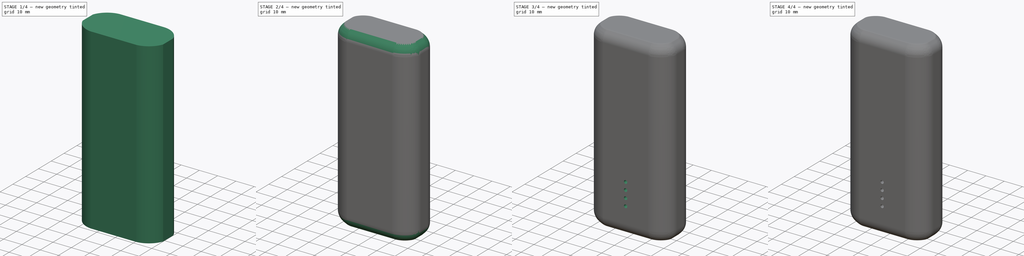
[diagram: build sequence overview — one tinted view per stage of 4, left to right]
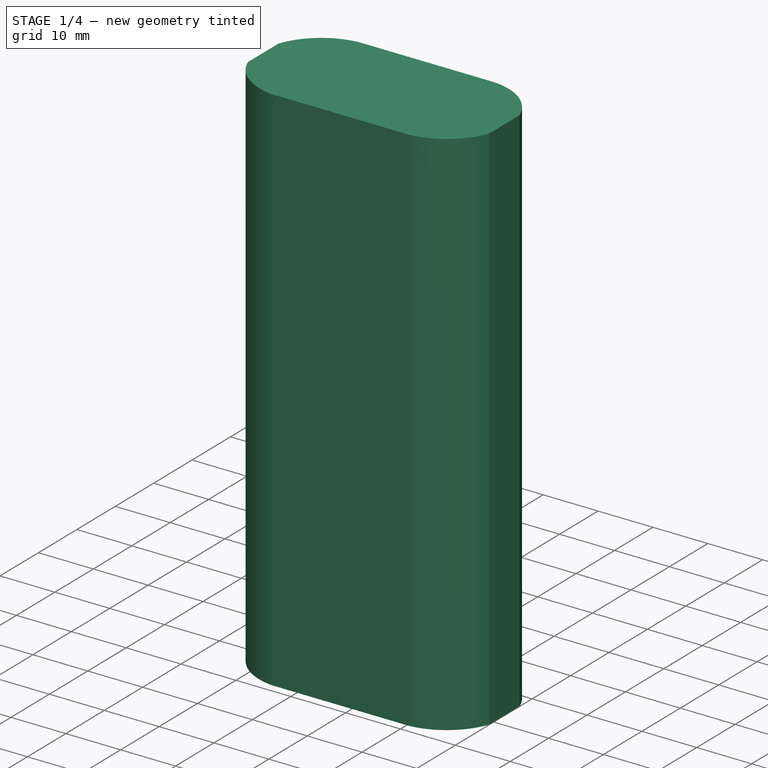
[diagram: stage 1 of 4 — iso view after this stage's code; geometry added in this stage tinted green]
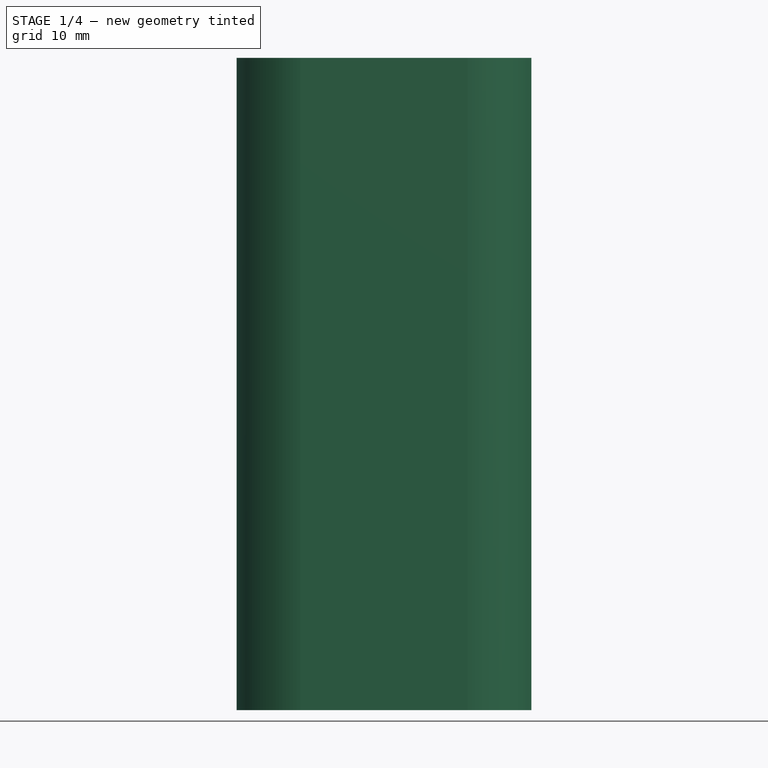
[diagram: stage 1 of 4 — front view after this stage's code; geometry added in this stage tinted green]
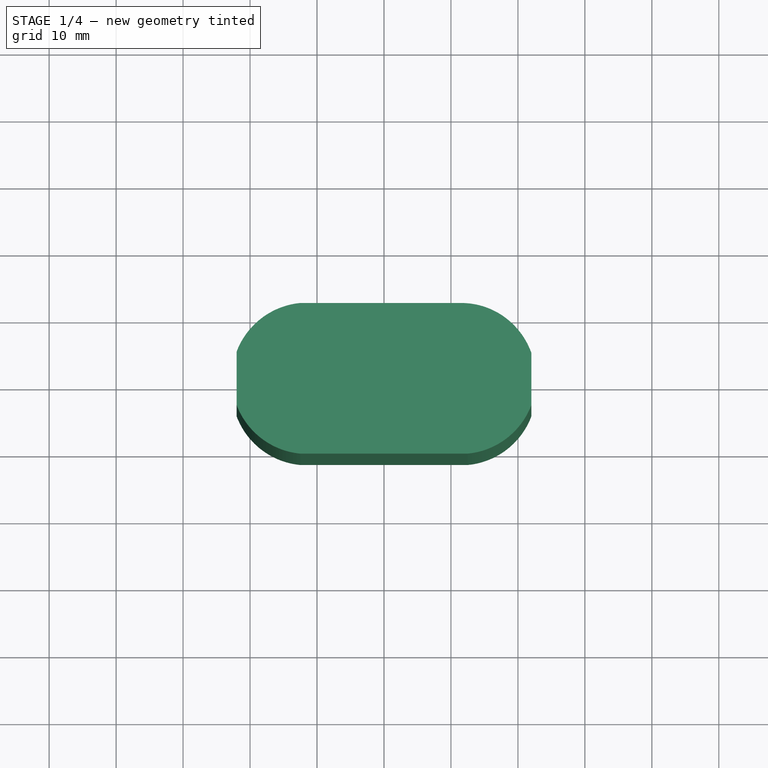
[diagram: stage 1 of 4 — top view after this stage's code; geometry added in this stage tinted green]
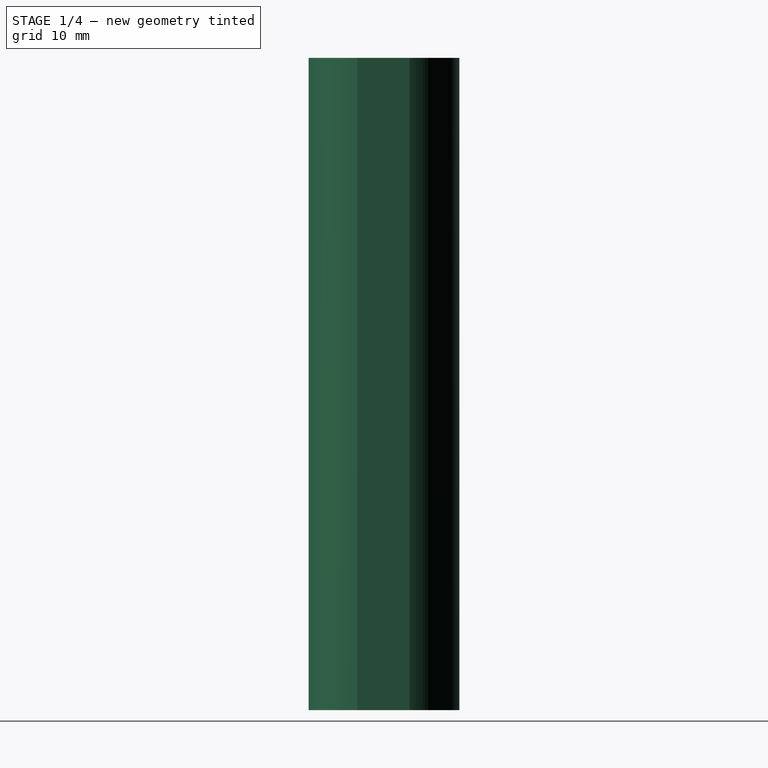
[diagram: stage 1 of 4 — right view after this stage's code; geometry added in this stage tinted green]
FCSTD DOCUMENT  (FreeCAD 0.18R14016 (Git))
Label: anker
License: CreativeCommons Attribution-NonCommercial-ShareAlike
LicenseURL: http://creativecommons.org/licenses/by-nc-sa/4.0/
objects: PartDesign::Fillet×5, Sketcher::SketchObject×4, PartDesign::Pad×2, PartDesign::Pocket×2, PartDesign::Chamfer×1, PartDesign::Body×1
note: 19 computed .brp shape members not serialized (recipe doc carries the construction recipe); baked Part::Feature solids carry a one-line shape summary decoded from their .brp

FEATURE [Sketcher::SketchObject] Sketch001
  MapMode = 5
  Placement = pos=(0,0,1) rot=(1,0,0;3.14159rad)
  sketch-geometry (16):
    g0: LineSegment [constr] StartX=22 StartY=-11.25 StartZ=0 EndX=-22 EndY=-11.25 EndZ=0
    g1: LineSegment [constr] StartX=-22 StartY=-11.25 StartZ=0 EndX=-22 EndY=11.25 EndZ=0
    g2: LineSegment [constr] StartX=-22 StartY=11.25 StartZ=0 EndX=22 EndY=11.25 EndZ=0
    g3: LineSegment [constr] StartX=22 StartY=11.25 StartZ=0 EndX=22 EndY=-11.25 EndZ=0
    g4: LineSegment [constr] StartX=28.0315 StartY=-4 StartZ=0 EndX=-32.5281 EndY=-4 EndZ=0
    g5: LineSegment [constr] StartX=-31.9917 StartY=4 StartZ=0 EndX=28.1507 EndY=4 EndZ=0
    g6: LineSegment [constr] StartX=12.5 StartY=-17.9811 StartZ=0 EndX=12.5 EndY=19.0141 EndZ=0
    g7: LineSegment [constr] StartX=-12.5 StartY=-17.584 StartZ=0 EndX=-12.5 EndY=18.8949 EndZ=0
    g8: ArcOfCircle CenterX=-11.4309 CenterY=0 CenterZ=0 NormalX=0 NormalY=0 NormalZ=1 AngleXU=0 Radius=11.3007 StartAngle=3.5034 EndAngle=4.61764
    g9: ArcOfCircle CenterX=-11.4309 CenterY=0 CenterZ=0 NormalX=0 NormalY=0 NormalZ=1 AngleXU=0 Radius=11.3007 StartAngle=1.66554 EndAngle=2.77979
    g10: ArcOfCircle CenterX=11.3569 CenterY=0 CenterZ=0 NormalX=0 NormalY=0 NormalZ=1 AngleXU=0 Radius=11.3079 StartAngle=4.81365 EndAngle=5.93933
    g11: ArcOfCircle CenterX=11.4342 CenterY=0 CenterZ=0 NormalX=0 NormalY=0 NormalZ=1 AngleXU=0 Radius=11.3004 StartAngle=0.361813 EndAngle=1.47634
    g12: LineSegment StartX=12.5 StartY=-11.25 StartZ=0 EndX=-12.5 EndY=-11.25 EndZ=0
    g13: LineSegment StartX=-12.5 StartY=11.25 StartZ=0 EndX=12.5 EndY=11.25 EndZ=0
    g14: LineSegment StartX=-22 StartY=4 StartZ=0 EndX=-22 EndY=-4 EndZ=0
    g15: LineSegment StartX=22.0029 StartY=-3.81212 StartZ=0 EndX=22.0029 EndY=4 EndZ=0
  constraints (37):
    c: Coincident(g0,g1)
    c: Coincident(g1,g2)
    c: Coincident(g2,g3)
    c: Coincident(g3,g0)
    c: Horizontal(g0)
    c: Horizontal(g2)
    c: Vertical(g1)
    c: Vertical(g3)
    c: DistanceY(g3,g3) = 22.5
    c: DistanceY(g0,g-1) = 11.25
    c: DistanceX(g0,g0) = 44
    c: DistanceX(g-1,g0) = 22
    c: Horizontal(g4)
    c: Horizontal(g5)
    c: DistanceY(g-1,g5) = 4
    c: DistanceY(g4,g-1) = 4
    c: Vertical(g6)
    c: Vertical(g7)
    c: DistanceX(g7,g-1) = 12.5
    c: DistanceX(g-1,g6) = 12.5
    c: PointOnObject(g8,g0)
    c: PointOnObject(g8,g1)
    c: PointOnObject(g8,g-1)
    c: PointOnObject(g8,g4)
    c: PointOnObject(g8,g7)
    c: Coincident(g12,g10)
    c: Coincident(g12,g8)
    c: Horizontal(g12)
    c: Coincident(g13,g9)
    c: Coincident(g13,g11)
    c: Horizontal(g13)
    c: Coincident(g14,g9)
    c: Coincident(g14,g8)
    c: Vertical(g14)
    c: Coincident(g15,g10)
    c: Coincident(g15,g11)
    c: Vertical(g15)
FEATURE [PartDesign::Pad] Pad
  Length = 97.4
  Length2 = 100
  Placement = pos=(0,0,1) rot=(1,0,0;3.14159rad)
  Profile = -> Sketch001
  Type = 0
FEATURE [PartDesign::Fillet] Fillet
  Base = -> Pad [Edge11,Edge8,Edge1,Edge20]
  BaseFeature = -> Pad
  Placement = pos=(0,0,1) rot=(1,0,0;3.14159rad)
  Radius = 11
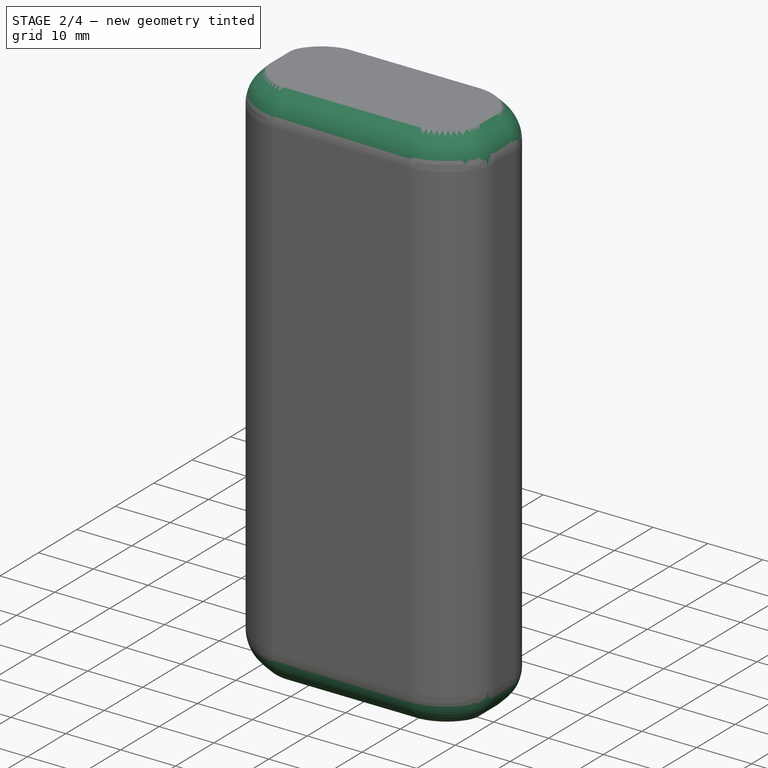
[diagram: stage 2 of 4 — iso view after this stage's code; geometry added in this stage tinted green]
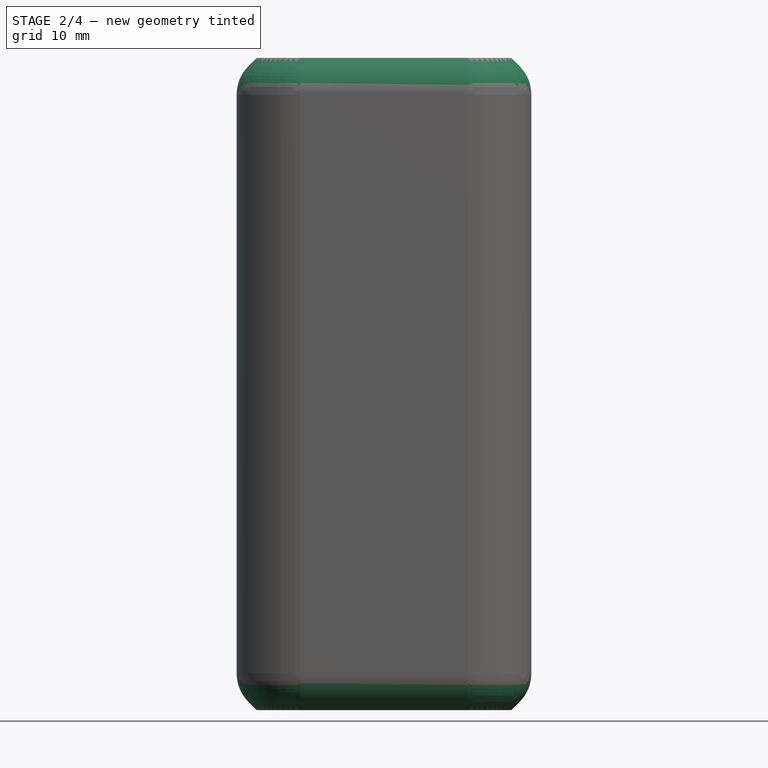
[diagram: stage 2 of 4 — front view after this stage's code; geometry added in this stage tinted green]
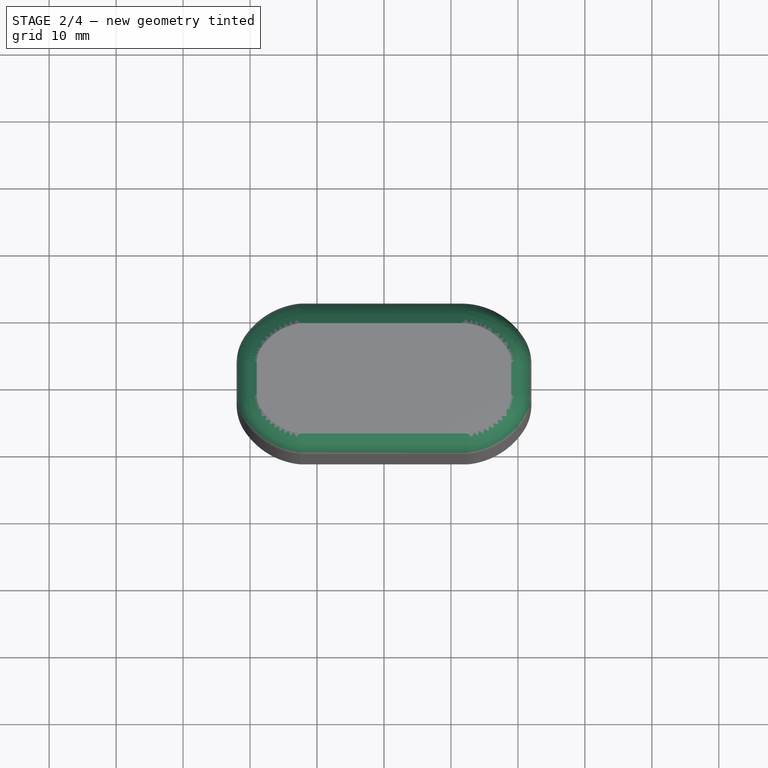
[diagram: stage 2 of 4 — top view after this stage's code; geometry added in this stage tinted green]
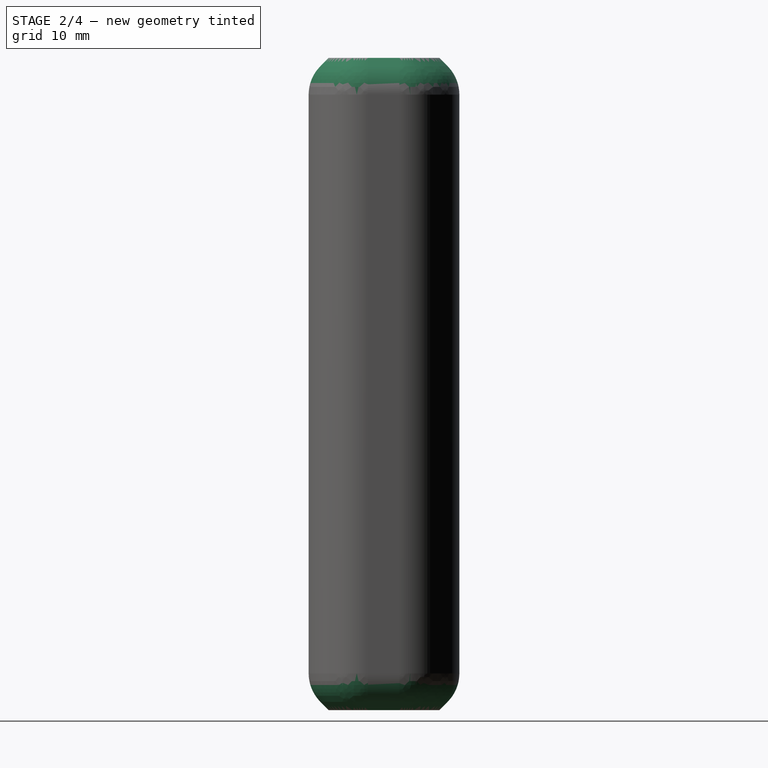
[diagram: stage 2 of 4 — right view after this stage's code; geometry added in this stage tinted green]
FEATURE [PartDesign::Fillet] Fillet001
  Base = -> Fillet [Edge23,Edge25,Edge15,Edge24]
  BaseFeature = -> Fillet
  Placement = pos=(0,0,1) rot=(1,0,0;3.14159rad)
  Radius = 7
FEATURE [PartDesign::Chamfer] Chamfer
  Base = -> Fillet001 [Edge34,Edge10]
  BaseFeature = -> Fillet001
  Placement = pos=(0,0,1) rot=(1,0,0;3.14159rad)
  Size = 3
FEATURE [PartDesign::Fillet] Fillet002
  Base = -> Chamfer [Edge41,Face15]
  BaseFeature = -> Chamfer
  Placement = pos=(0,0,1) rot=(1,0,0;3.14159rad)
  Radius = 6
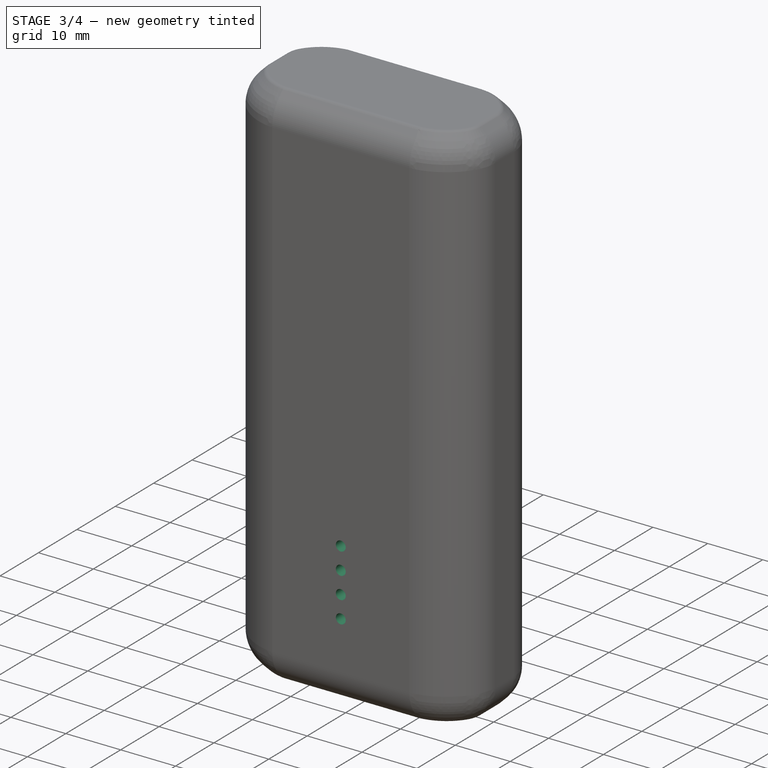
[diagram: stage 3 of 4 — iso view after this stage's code; geometry added in this stage tinted green]
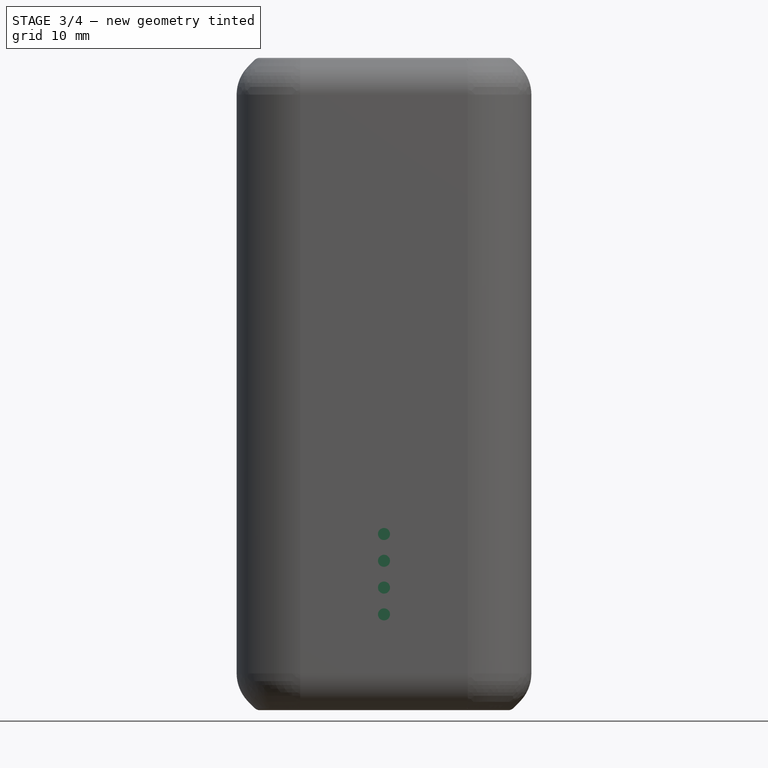
[diagram: stage 3 of 4 — front view after this stage's code; geometry added in this stage tinted green]
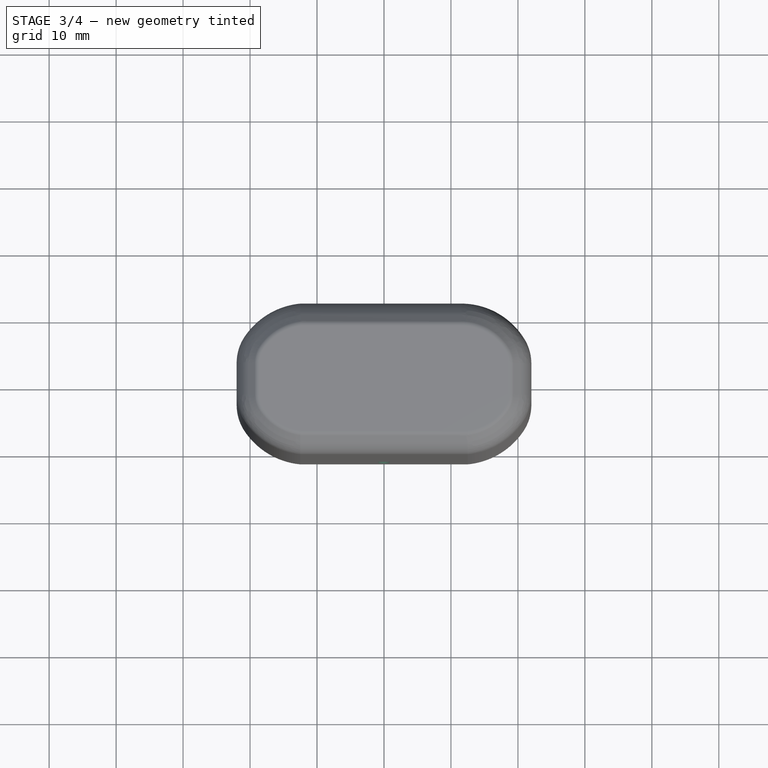
[diagram: stage 3 of 4 — top view after this stage's code; geometry added in this stage tinted green]
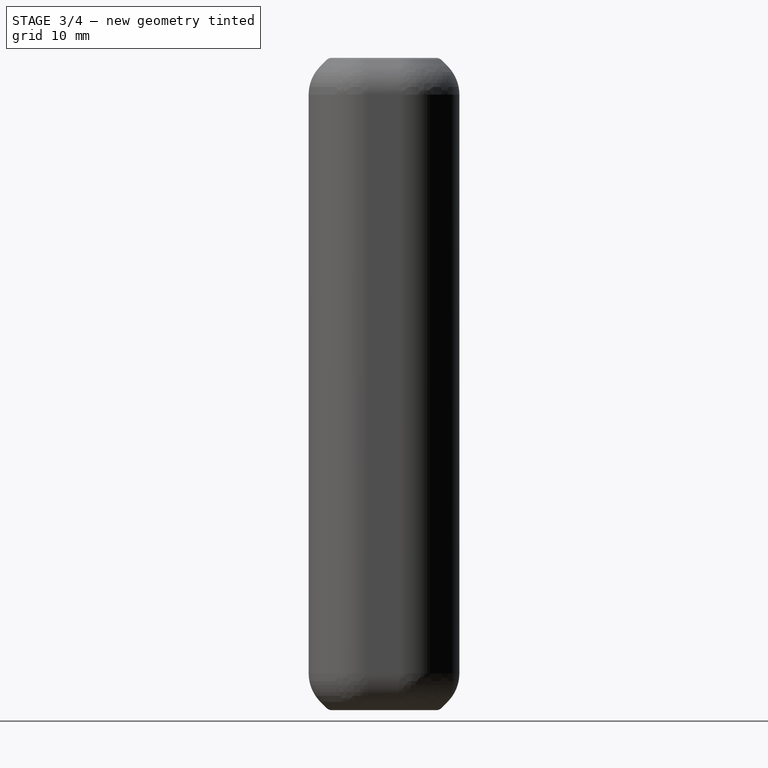
[diagram: stage 3 of 4 — right view after this stage's code; geometry added in this stage tinted green]
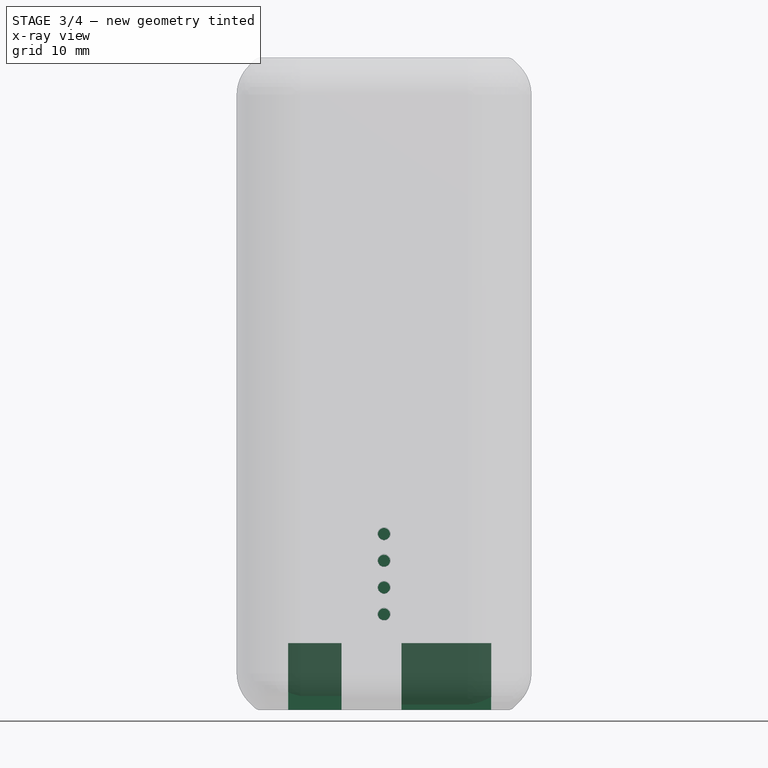
[diagram: stage 3 of 4 — x-ray composite at the front view; earlier geometry ghosted, this stage's added geometry solid]
FEATURE [PartDesign::Fillet] Fillet003
  Base = -> Fillet002 [Edge103,Edge3]
  BaseFeature = -> Fillet002
  Placement = pos=(0,0,1) rot=(1,0,0;3.14159rad)
  Radius = 1
FEATURE [Sketcher::SketchObject] Sketch004
  MapMode = 5
  Placement = pos=(0,0,-96.4) rot=(1,0,0;3.14159rad)
  Support = -> [Fillet003]
  sketch-geometry (8):
    g0: LineSegment StartX=2.61235 StartY=2.6 StartZ=0 EndX=16.0124 EndY=2.6 EndZ=0
    g1: LineSegment StartX=16.0124 StartY=2.6 StartZ=0 EndX=16.0124 EndY=-2.6 EndZ=0
    g2: LineSegment StartX=16.0124 StartY=-2.6 StartZ=0 EndX=2.61235 EndY=-2.6 EndZ=0
    g3: LineSegment StartX=2.61235 StartY=-2.6 StartZ=0 EndX=2.61235 EndY=2.6 EndZ=0
    g4: LineSegment StartX=-14.3232 StartY=1.5 StartZ=0 EndX=-6.32323 EndY=1.5 EndZ=0
    g5: LineSegment StartX=-6.32323 StartY=1.5 StartZ=0 EndX=-6.32323 EndY=-1.5 EndZ=0
    g6: LineSegment StartX=-6.32323 StartY=-1.5 StartZ=0 EndX=-14.3232 EndY=-1.5 EndZ=0
    g7: LineSegment StartX=-14.3232 StartY=-1.5 StartZ=0 EndX=-14.3232 EndY=1.5 EndZ=0
  constraints (22):
    c: Coincident(g0,g1)
    c: Coincident(g1,g2)
    c: Coincident(g2,g3)
    c: Coincident(g3,g0)
    c: Horizontal(g0)
    c: Horizontal(g2)
    c: Vertical(g1)
    c: Vertical(g3)
    c: DistanceX(g0,g0) = 13.4
    c: DistanceY(g3,g3) = 5.2
    c: DistanceY(g-1,g0) = 2.6
    c: Coincident(g4,g5)
    c: Coincident(g5,g6)
    c: Coincident(g6,g7)
    c: Coincident(g7,g4)
    c: Horizontal(g4)
    c: Horizontal(g6)
    c: Vertical(g5)
    c: Vertical(g7)
    c: DistanceX(g4,g4) = 8
    c: DistanceY(g5,g5) = 3
    c: DistanceY(g-1,g4) = 1.5
FEATURE [PartDesign::Pocket] Pocket
  BaseFeature = -> Fillet003
  Length = 10
  Length2 = 100
  Placement = pos=(0,0,1) rot=(1,0,0;3.14159rad)
  Profile = -> Sketch004
  Type = 0
FEATURE [Sketcher::SketchObject] Sketch005
  ExternalGeometry = -> [Pocket]
  MapMode = 5
  Placement = pos=(0,-11.25,1) rot=(0,0.707107,-0.707107;3.14159rad)
  Support = -> [Pocket]
  sketch-geometry (8):
    g0: LineSegment [constr] StartX=18.9798 StartY=83.1 StartZ=0 EndX=-24.436 EndY=83.1 EndZ=0
    g1: LineSegment [constr] StartX=14.791 StartY=79.1 StartZ=0 EndX=-16.851 EndY=79.1 EndZ=0
    g2: LineSegment [constr] StartX=16.9986 StartY=75.1 StartZ=0 EndX=-14.7 EndY=75.1 EndZ=0
    g3: LineSegment [constr] StartX=16.4892 StartY=71.1 StartZ=0 EndX=-18.1529 EndY=71.1 EndZ=0
    g4: Circle CenterX=0 CenterY=71.1 CenterZ=0 NormalX=0 NormalY=0 NormalZ=1 AngleXU=0 Radius=0.9
    g5: Circle CenterX=0 CenterY=75.1 CenterZ=0 NormalX=0 NormalY=0 NormalZ=1 AngleXU=0 Radius=0.9
    g6: Circle CenterX=0 CenterY=79.1 CenterZ=0 NormalX=0 NormalY=0 NormalZ=1 AngleXU=0 Radius=0.9
    g7: Circle CenterX=0 CenterY=83.1 CenterZ=0 NormalX=0 NormalY=0 NormalZ=1 AngleXU=0 Radius=0.9
  constraints (18):
    c: Horizontal(g0)
    c: DistanceY(g0,g-3) = 14.3
    c: Horizontal(g1)
    c: Horizontal(g2)
    c: Horizontal(g3)
    c: DistanceY(g1,g0) = 4
    c: DistanceY(g2,g1) = 4
    c: DistanceY(g3,g2) = 4
    c: PointOnObject(g4,g-2)
    c: Radius(g4) = 0.9
    c: PointOnObject(g4,g3)
    c: Equal(g4,g5) = 0.9
    c: PointOnObject(g5,g2)
    c: PointOnObject(g6,g1)
    c: PointOnObject(g7,g0)
    c: PointOnObject(g5,g-2)
    c: PointOnObject(g6,g-2)
    c: PointOnObject(g7,g-2)
FEATURE [PartDesign::Pocket] Pocket001
  BaseFeature = -> Pocket
  Length = 2
  Length2 = 100
  Placement = pos=(0,0,1) rot=(1,0,0;3.14159rad)
  Profile = -> Sketch005
  Type = 0
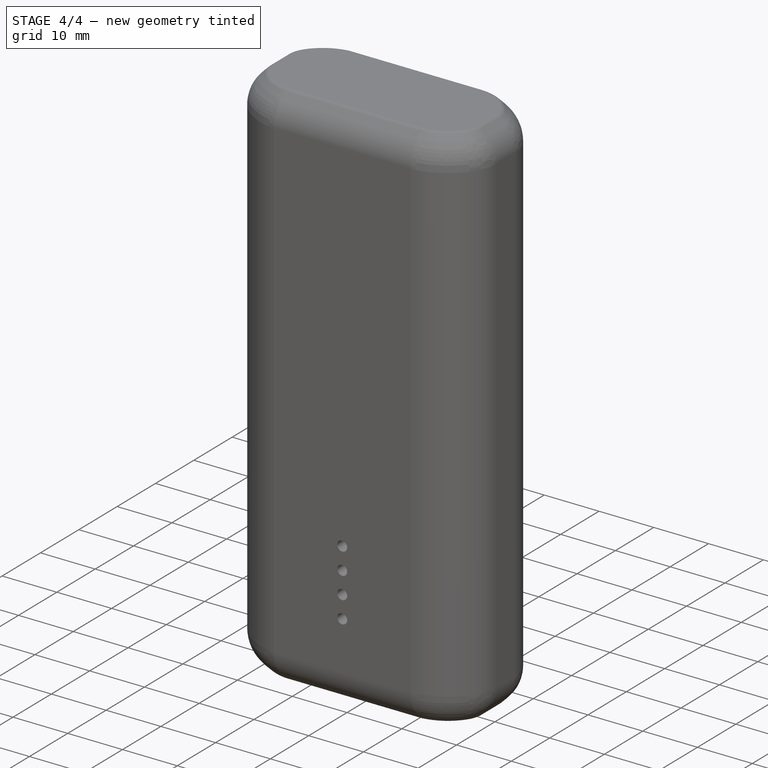
[diagram: stage 4 of 4 — iso view after this stage's code; geometry added in this stage tinted green]
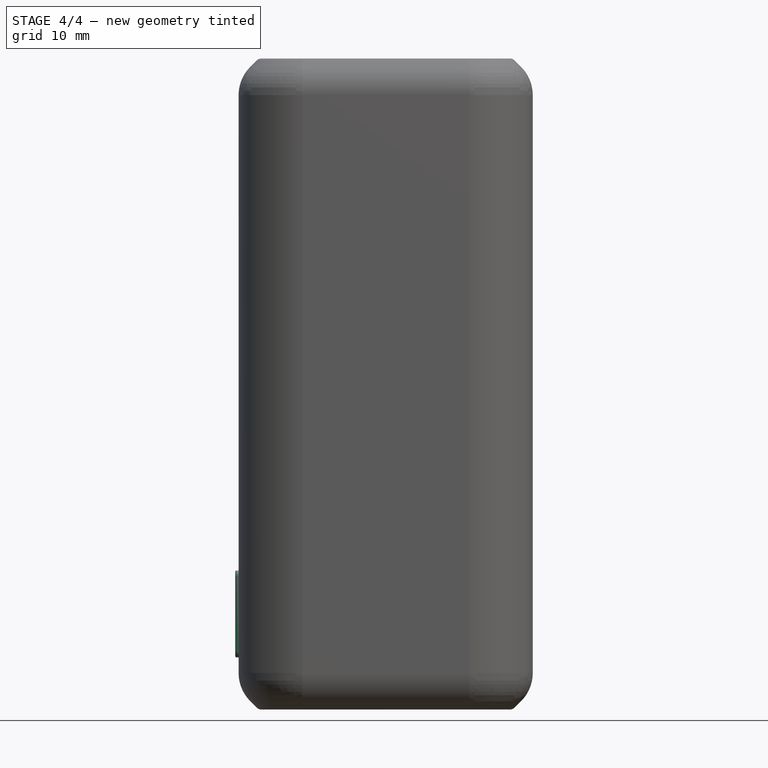
[diagram: stage 4 of 4 — front view after this stage's code; geometry added in this stage tinted green]
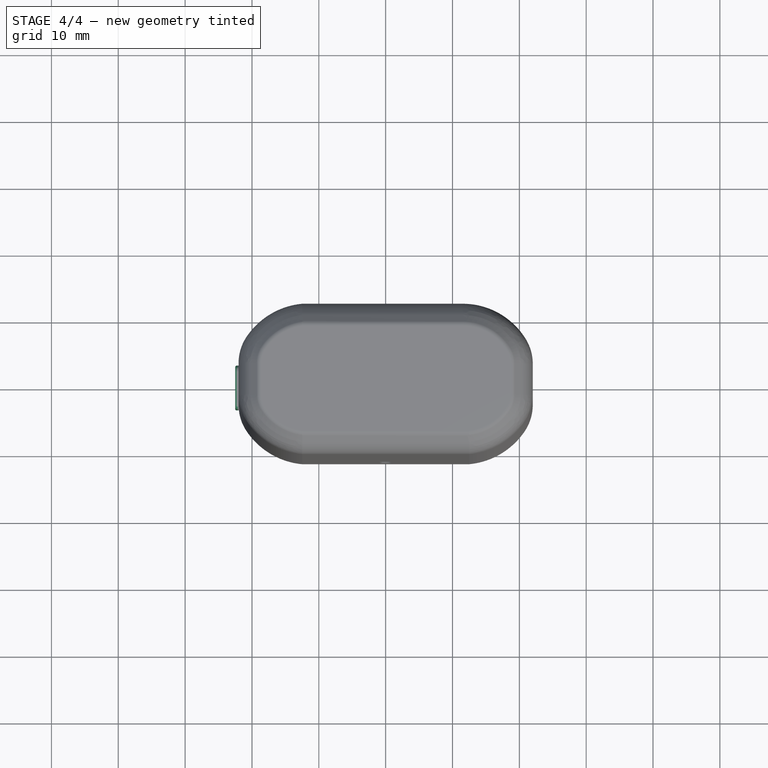
[diagram: stage 4 of 4 — top view after this stage's code; geometry added in this stage tinted green]
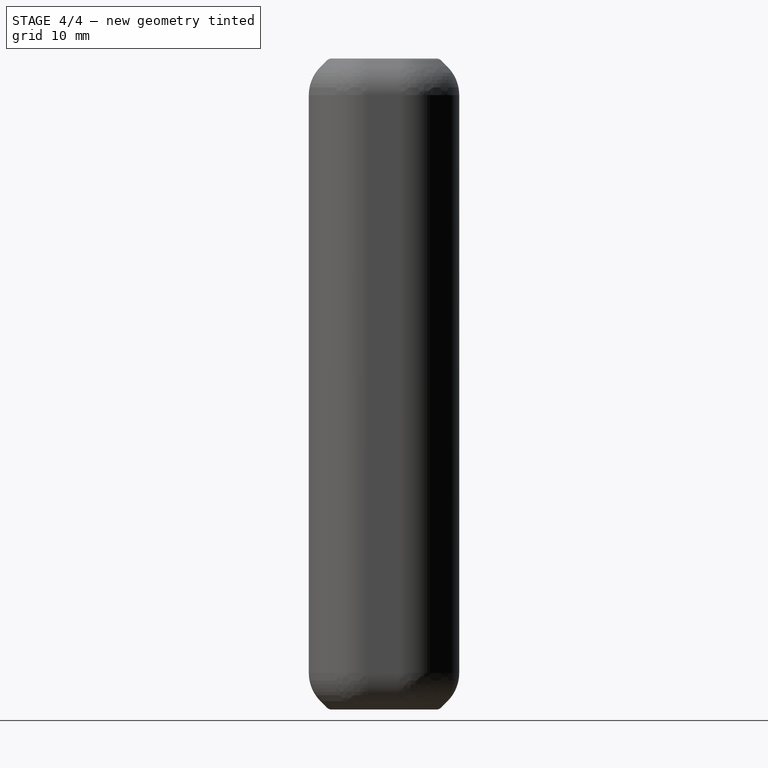
[diagram: stage 4 of 4 — right view after this stage's code; geometry added in this stage tinted green]
FEATURE [Sketcher::SketchObject] Sketch006
  ExternalGeometry = -> [Pocket001]
  MapMode = 5
  Placement = pos=(-22,0,1) rot=(0.57735,0.57735,-0.57735;4.18879rad)
  Support = -> [Pocket001]
  sketch-geometry (8):
    g0: LineSegment StartX=-2.25 StartY=89.6 StartZ=0 EndX=2.25 EndY=89.6 EndZ=0
    g1: LineSegment StartX=3.25 StartY=88.6 StartZ=0 EndX=3.25 EndY=77.6 EndZ=0
    g2: LineSegment StartX=2.25 StartY=76.6 StartZ=0 EndX=-2.25 EndY=76.6 EndZ=0
    g3: LineSegment StartX=-3.25 StartY=77.6 StartZ=0 EndX=-3.25 EndY=88.6 EndZ=0
    g4: ArcOfCircle CenterX=2.25 CenterY=88.6 CenterZ=0 NormalX=0 NormalY=0 NormalZ=1 AngleXU=0 Radius=1 StartAngle=0 EndAngle=1.5708
    g5: ArcOfCircle CenterX=2.25 CenterY=77.6 CenterZ=0 NormalX=0 NormalY=0 NormalZ=1 AngleXU=0 Radius=1 StartAngle=4.71239 EndAngle=6.28319
    g6: ArcOfCircle CenterX=-2.25 CenterY=77.6 CenterZ=0 NormalX=0 NormalY=0 NormalZ=1 AngleXU=0 Radius=1 StartAngle=3.14159 EndAngle=4.71239
    g7: ArcOfCircle CenterX=-2.25 CenterY=88.6 CenterZ=0 NormalX=0 NormalY=0 NormalZ=1 AngleXU=0 Radius=1 StartAngle=1.5708 EndAngle=3.14159
  constraints (20):
    c: Horizontal(g0)
    c: Horizontal(g2)
    c: Vertical(g1)
    c: Vertical(g3)
    c: Tangent(g0,g4) = 1.5708
    c: Tangent(g1,g4) = 1.5708
    c: Tangent(g2,g5) = 1.5708
    c: Tangent(g1,g5) = 1.5708
    c: Tangent(g2,g6) = 1.5708
    c: Tangent(g3,g6) = 1.5708
    c: Tangent(g0,g7) = 1.5708
    c: Tangent(g3,g7) = 1.5708
    c: DistanceX(g3,g1) = 6.5
    c: DistanceY(g2,g0) = 13
    c: Radius(g7) = 1
    c: Radius(g4) = 1
    c: Radius(g5) = 1
    c: Radius(g6) = 1
    c: DistanceX(g3,g-1) = 3.25
    c: DistanceY(g2,g-3) = 20.8
FEATURE [PartDesign::Pad] Pad001
  BaseFeature = -> Pocket001
  Length = 0.5
  Length2 = 100
  Placement = pos=(0,0,1) rot=(1,0,0;3.14159rad)
  Profile = -> Sketch006
  Type = 0
FEATURE [PartDesign::Fillet] Fillet004
  Base = -> Pad001 [Edge209]
  BaseFeature = -> Pad001
  Placement = pos=(0,0,1) rot=(1,0,0;3.14159rad)
  Radius = 0.2
FEATURE [PartDesign::Body] Body
  Group = -> [Sketch001,Pad,Fillet,Fillet001,Chamfer,Fillet002,Fillet003,Sketch004,Pocket,Sketch005,Pocket001,Sketch006,Pad001,Fillet004]
  Origin = -> Origin
  Tip = -> Fillet004
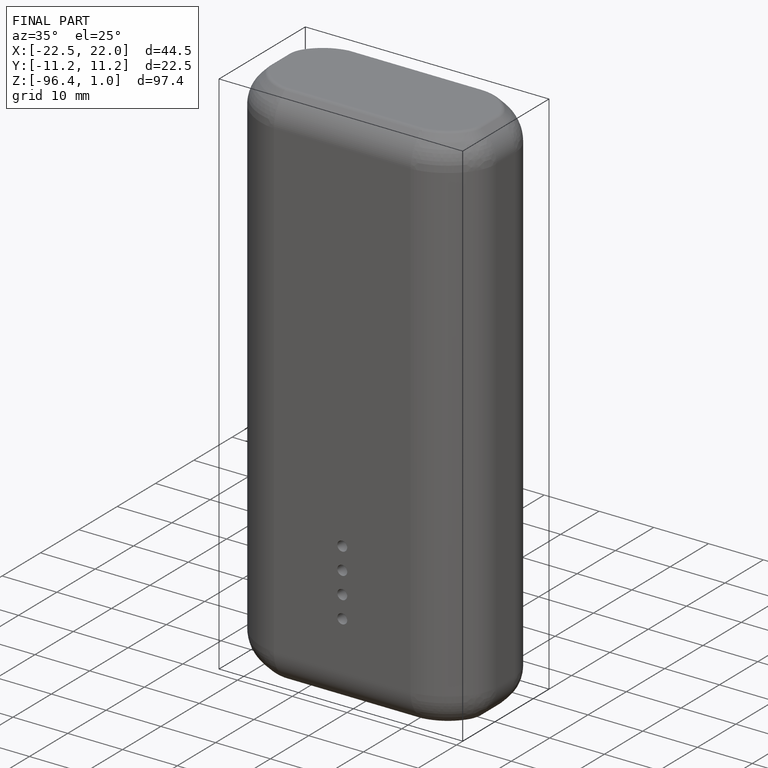
[diagram: finished part — iso view with bounding-box wireframe]
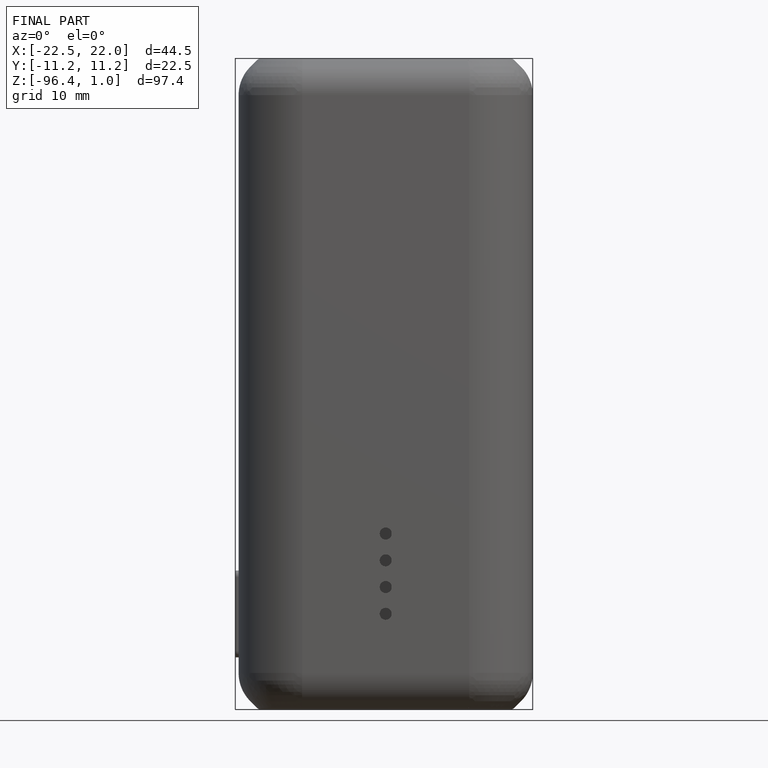
[diagram: finished part — front view with bounding-box wireframe]
